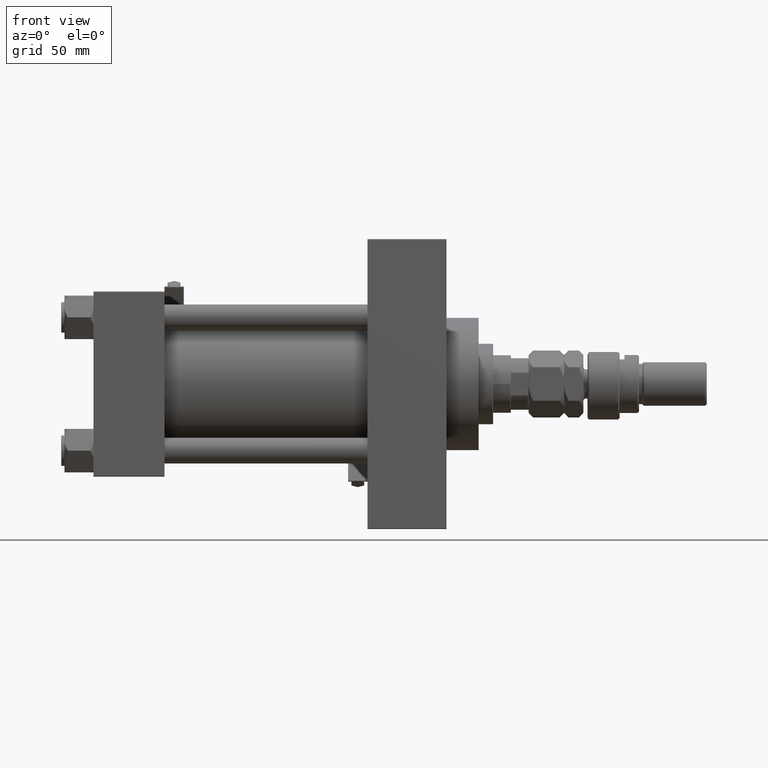
[diagram: clean part render]
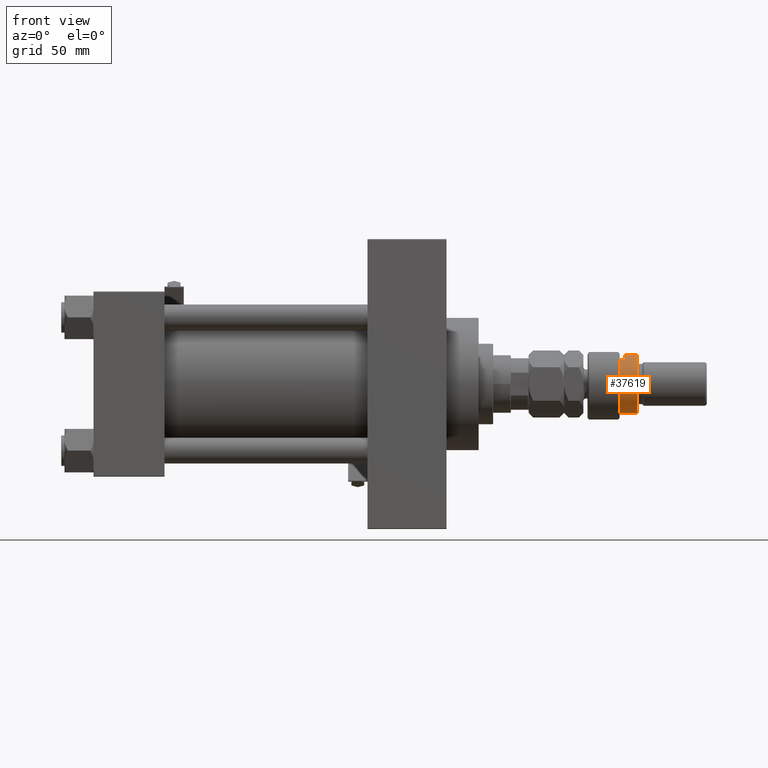
[diagram: same view with one face highlighted and labeled with its STEP entity id]
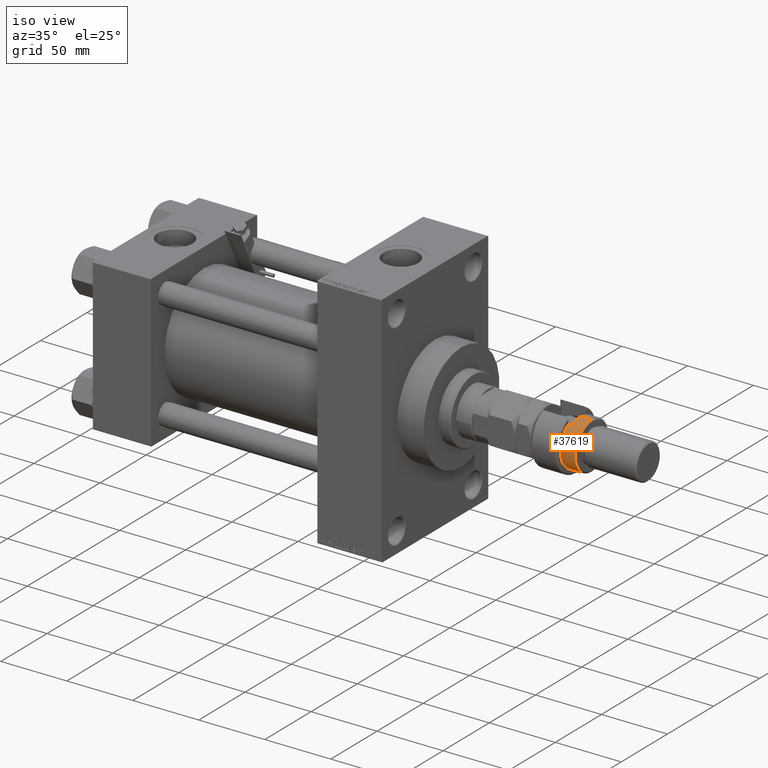
[diagram: same view with one face highlighted and labeled with its STEP entity id]
A machine part, front view. The second image highlights one B-rep face of the part: STEP entity #37619.
A second angle (iso view) of the same face is appended — the face is thin or edge-on in the first view.
In plain terms, the highlighted cylindrical surface (edge-blend (fillet) strip) has radius 18 mm, axis along (-1, -0, 0).
Its self-contained STEP definition (entity closure, byte-faithful):
#319 = EDGE_CURVE ( 'NONE', #32121, #32573, #7350, .T. ) ;
#1645 = DIRECTION ( 'NONE',  ( -1.000000000000000000, 0.000000000000000000, 0.000000000000000000 ) ) ;
#2649 = EDGE_CURVE ( 'NONE', #39237, #17346, #49919, .T. ) ;
#2801 = CARTESIAN_POINT ( 'NONE',  ( 0.000000000000000000, 0.000000000000000000, 30.99999999999999645 ) ) ;
#3215 = EDGE_CURVE ( 'NONE', #33966, #32573, #4513, .T. ) ;
#3432 = ORIENTED_EDGE ( 'NONE', *, *, #3215, .F. ) ;
#4252 = CARTESIAN_POINT ( 'NONE',  ( 18.00000000000000000, 2.204364238465235428E-15, 32.00000000000000000 ) ) ;
#4513 = LINE ( 'NONE', #4252, #9986 ) ;
#4907 = ORIENTED_EDGE ( 'NONE', *, *, #319, .T. ) ;
#6199 = DIRECTION ( 'NONE',  ( 0.000000000000000000, 0.000000000000000000, 1.000000000000000000 ) ) ;
#7350 = CIRCLE ( 'NONE', #20695, 18.00000000000000000 ) ;
#7404 = EDGE_CURVE ( 'NONE', #33966, #10764, #15875, .T. ) ;
#8789 = CARTESIAN_POINT ( 'NONE',  ( -15.28888485142065434, -9.500000000000000000, 19.99999999999999645 ) ) ;
#9602 = ORIENTED_EDGE ( 'NONE', *, *, #2649, .F. ) ;
#9986 = VECTOR ( 'NONE', #13122, 1000.000000000000000 ) ;
#10277 = DIRECTION ( 'NONE',  ( -0.000000000000000000, -0.000000000000000000, -1.000000000000000000 ) ) ;
#10638 = DIRECTION ( 'NONE',  ( -0.000000000000000000, -0.000000000000000000, -1.000000000000000000 ) ) ;
#10764 = VERTEX_POINT ( 'NONE', #20291 ) ;
#11695 = AXIS2_PLACEMENT_3D ( 'NONE', #2801, #26042, #23147 ) ;
#13122 = DIRECTION ( 'NONE',  ( -0.000000000000000000, -0.000000000000000000, -1.000000000000000000 ) ) ;
#13126 = ORIENTED_EDGE ( 'NONE', *, *, #16966, .T. ) ;
#14531 = DIRECTION ( 'NONE',  ( -1.000000000000000000, 0.000000000000000000, 0.000000000000000000 ) ) ;
#15875 = CIRCLE ( 'NONE', #11695, 18.00000000000000000 ) ;
#16966 = EDGE_CURVE ( 'NONE', #10764, #17346, #50553, .T. ) ;
#17346 = VERTEX_POINT ( 'NONE', #28380 ) ;
#17727 = EDGE_CURVE ( 'NONE', #39237, #32121, #41335, .T. ) ;
#18000 = CARTESIAN_POINT ( 'NONE',  ( -15.28888485142065434, -9.500000000000000000, 23.00000000000000000 ) ) ;
#20291 = CARTESIAN_POINT ( 'NONE',  ( -18.00000000000000000, 0.000000000000000000, 30.99999999999999645 ) ) ;
#20695 = AXIS2_PLACEMENT_3D ( 'NONE', #26036, #6199, #29935 ) ;
#23147 = DIRECTION ( 'NONE',  ( 1.000000000000000000, 0.000000000000000000, 0.000000000000000000 ) ) ;
#24106 = AXIS2_PLACEMENT_3D ( 'NONE', #34350, #26543, #14531 ) ;
#25686 = CARTESIAN_POINT ( 'NONE',  ( -15.28888485142065434, -9.500000000000000000, 32.00000000000000000 ) ) ;
#26036 = CARTESIAN_POINT ( 'NONE',  ( 0.000000000000000000, 0.000000000000000000, 20.00000000000000000 ) ) ;
#26042 = DIRECTION ( 'NONE',  ( 0.000000000000000000, 0.000000000000000000, -1.000000000000000000 ) ) ;
#26152 = VECTOR ( 'NONE', #10277, 1000.000000000000000 ) ;
#26495 = ORIENTED_EDGE ( 'NONE', *, *, #17727, .T. ) ;
#26543 = DIRECTION ( 'NONE',  ( 0.000000000000000000, 0.000000000000000000, -1.000000000000000000 ) ) ;
#28380 = CARTESIAN_POINT ( 'NONE',  ( -18.00000000000000000, 0.000000000000000000, 23.00000000000000000 ) ) ;
#28552 = CARTESIAN_POINT ( 'NONE',  ( 0.000000000000000000, 0.000000000000000000, 32.00000000000000000 ) ) ;
#28808 = FACE_OUTER_BOUND ( 'NONE', #35187, .T. ) ;
#29056 = CYLINDRICAL_SURFACE ( 'NONE', #37607, 18.00000000000000000 ) ;
#29935 = DIRECTION ( 'NONE',  ( 1.000000000000000000, 0.000000000000000000, 0.000000000000000000 ) ) ;
#30104 = CARTESIAN_POINT ( 'NONE',  ( 18.00000000000000000, 2.204364238465235428E-15, 20.00000000000000000 ) ) ;
#32121 = VERTEX_POINT ( 'NONE', #8789 ) ;
#32573 = VERTEX_POINT ( 'NONE', #30104 ) ;
#32764 = VECTOR ( 'NONE', #10638, 1000.000000000000000 ) ;
#33966 = VERTEX_POINT ( 'NONE', #38656 ) ;
#34350 = CARTESIAN_POINT ( 'NONE',  ( 0.000000000000000000, 0.000000000000000000, 23.00000000000000000 ) ) ;
#35187 = EDGE_LOOP ( 'NONE', ( #3432, #43159, #13126, #9602, #26495, #4907 ) ) ;
#37607 = AXIS2_PLACEMENT_3D ( 'NONE', #28552, #37661, #1645 ) ;
#37619 = ADVANCED_FACE ( 'NONE', ( #28808 ), #29056, .T. ) ;
#37661 = DIRECTION ( 'NONE',  ( -0.000000000000000000, -0.000000000000000000, -1.000000000000000000 ) ) ;
#38656 = CARTESIAN_POINT ( 'NONE',  ( 18.00000000000000000, 2.204364238465235428E-15, 30.99999999999999645 ) ) ;
#39237 = VERTEX_POINT ( 'NONE', #18000 ) ;
#41335 = LINE ( 'NONE', #25686, #26152 ) ;
#43159 = ORIENTED_EDGE ( 'NONE', *, *, #7404, .T. ) ;
#45159 = CARTESIAN_POINT ( 'NONE',  ( -18.00000000000000000, 0.000000000000000000, 32.00000000000000000 ) ) ;
#49919 = CIRCLE ( 'NONE', #24106, 18.00000000000000000 ) ;
#50553 = LINE ( 'NONE', #45159, #32764 ) ;